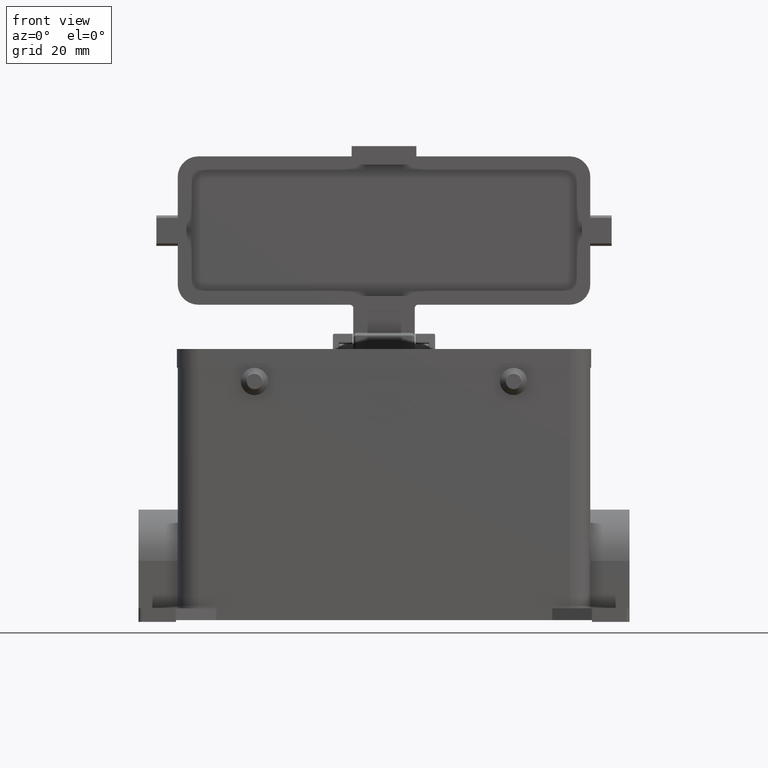
[diagram: clean part render]
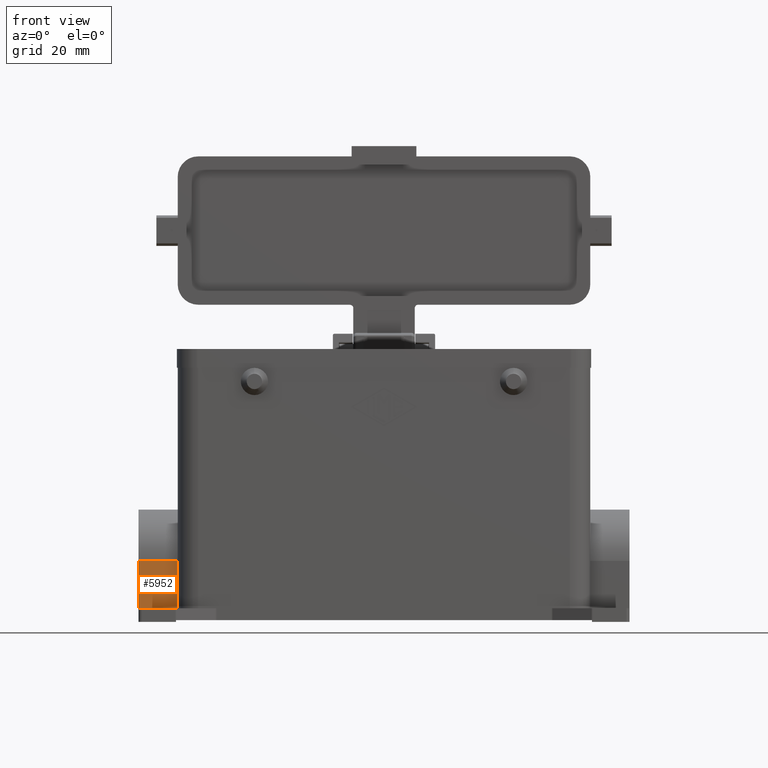
[diagram: same view with one face highlighted and labeled with its STEP entity id]
A machine part, front view. The second image highlights one B-rep face of the part: STEP entity #5952.
In plain terms, the highlighted face is a freeform B-spline surface patch.
Its self-contained STEP definition (entity closure, byte-faithful):
#5892=CARTESIAN_POINT('',(-60.500000000000000,-15.140000000000002,-47.0));
#5893=VERTEX_POINT('',#5892);
#5900=CARTESIAN_POINT('',(-72.0,-15.140000000000002,-46.999999999999993));
#5901=VERTEX_POINT('',#5900);
#5902=CARTESIAN_POINT('',(-72.0,-15.140000000000002,-46.999999999999993));
#5903=DIRECTION('',(1.0,0.0,0.0));
#5904=VECTOR('',#5903,11.500000000000000);
#5905=LINE('',#5902,#5904);
#5906=EDGE_CURVE('',#5901,#5893,#5905,.T.);
#5922=CARTESIAN_POINT('',(-72.0,-15.140000000000002,-33.109999999999992));
#5923=CARTESIAN_POINT('',(-72.0,-15.140000000000002,-47.0));
#5924=CARTESIAN_POINT('',(-60.500000000000000,-15.140000000000002,-33.109999999999992));
#5925=CARTESIAN_POINT('',(-60.500000000000000,-15.140000000000002,-46.999999999999993));
#5926=B_SPLINE_SURFACE_WITH_KNOTS('',1,1,((#5922,#5924),(#5923,#5925)),.UNSPECIFIED.,.F.,.F.,.U.,(2,2),(2,2),(0.0,13.890000000000008),(0.0,11.500000000000000),.UNSPECIFIED.);
#5927=ORIENTED_EDGE('',*,*,#5906,.T.);
#5928=CARTESIAN_POINT('',(-60.500000000000000,-15.140000000000002,-33.109999999999992));
#5929=VERTEX_POINT('',#5928);
#5930=CARTESIAN_POINT('',(-60.500000000000000,-15.140000000000002,-33.109999999999992));
#5931=DIRECTION('',(0.0,0.0,-1.0));
#5932=VECTOR('',#5931,13.890000000000008);
#5933=LINE('',#5930,#5932);
#5934=EDGE_CURVE('',#5929,#5893,#5933,.T.);
#5935=ORIENTED_EDGE('',*,*,#5934,.F.);
#5936=CARTESIAN_POINT('',(-72.0,-15.140000000000002,-33.109999999999992));
#5937=VERTEX_POINT('',#5936);
#5938=CARTESIAN_POINT('',(-60.500000000000000,-15.140000000000002,-33.109999999999992));
#5939=DIRECTION('',(-1.0,0.0,0.0));
#5940=VECTOR('',#5939,11.500000000000000);
#5941=LINE('',#5938,#5940);
#5942=EDGE_CURVE('',#5929,#5937,#5941,.T.);
#5943=ORIENTED_EDGE('',*,*,#5942,.T.);
#5944=CARTESIAN_POINT('',(-72.0,-15.140000000000002,-46.999999999999993));
#5945=DIRECTION('',(0.0,0.0,1.0));
#5946=VECTOR('',#5945,13.890000000000001);
#5947=LINE('',#5944,#5946);
#5948=EDGE_CURVE('',#5901,#5937,#5947,.T.);
#5949=ORIENTED_EDGE('',*,*,#5948,.F.);
#5950=EDGE_LOOP('',(#5927,#5935,#5943,#5949));
#5951=FACE_OUTER_BOUND('',#5950,.T.);
#5952=ADVANCED_FACE('',(#5951),#5926,.T.);